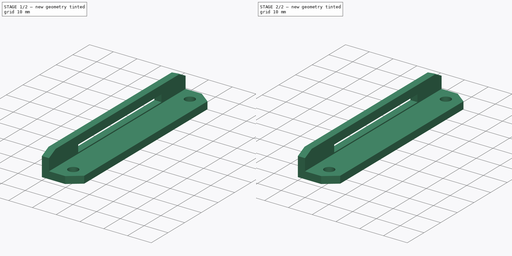
[diagram: build sequence overview — one tinted view per stage of 2, left to right]
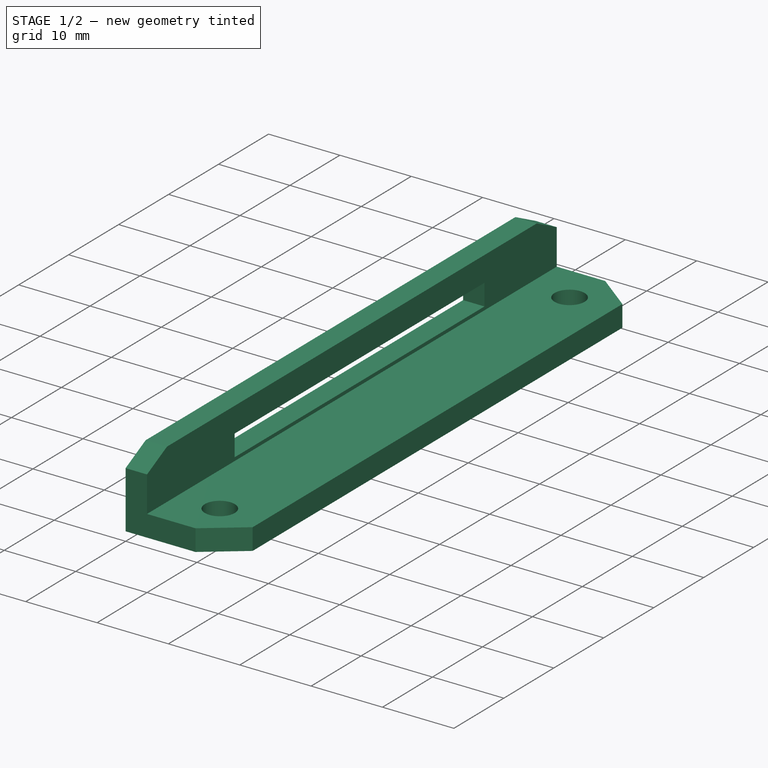
[diagram: stage 1 of 2 — iso view after this stage's code; geometry added in this stage tinted green]
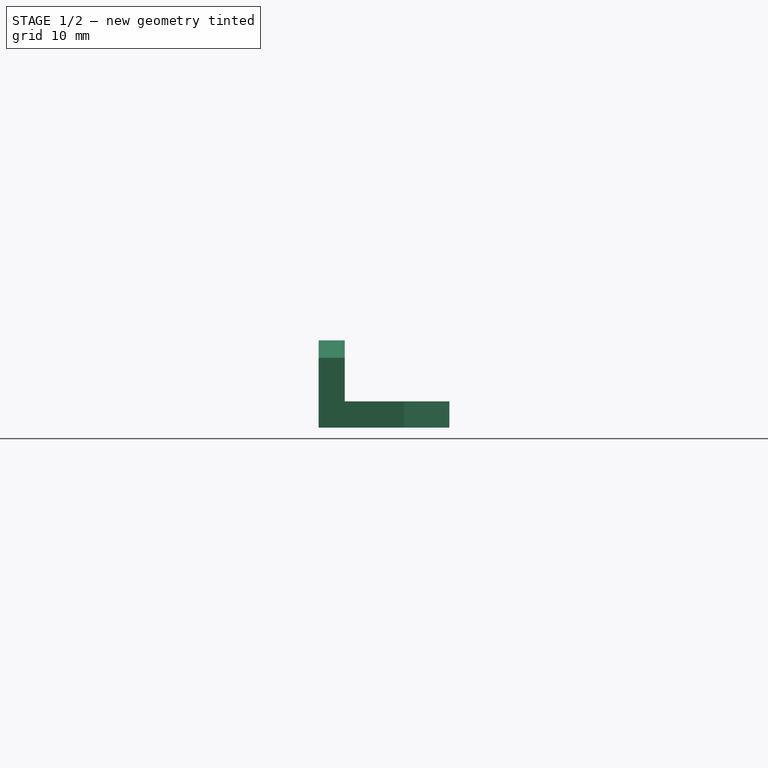
[diagram: stage 1 of 2 — front view after this stage's code; geometry added in this stage tinted green]
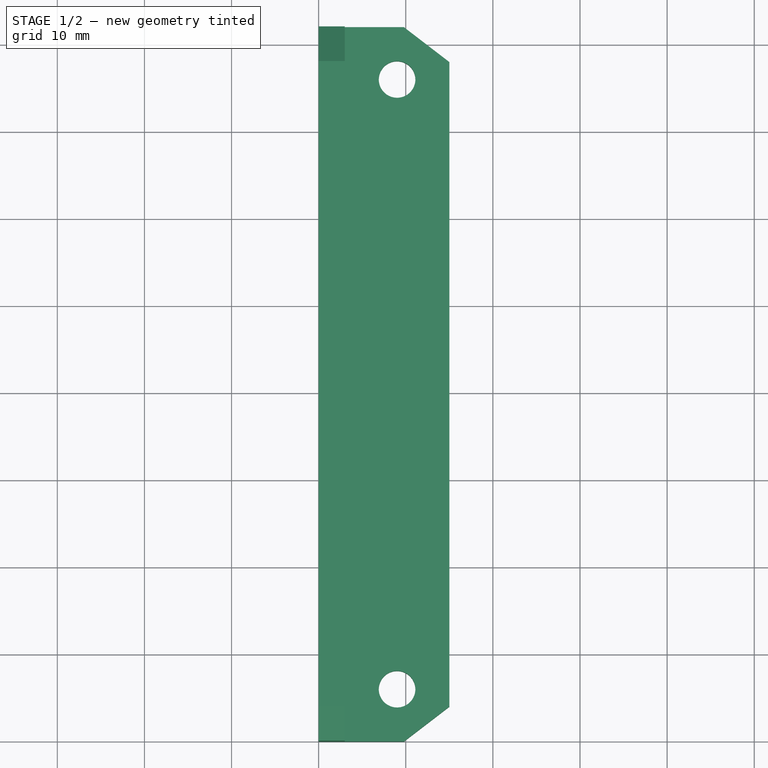
[diagram: stage 1 of 2 — top view after this stage's code; geometry added in this stage tinted green]
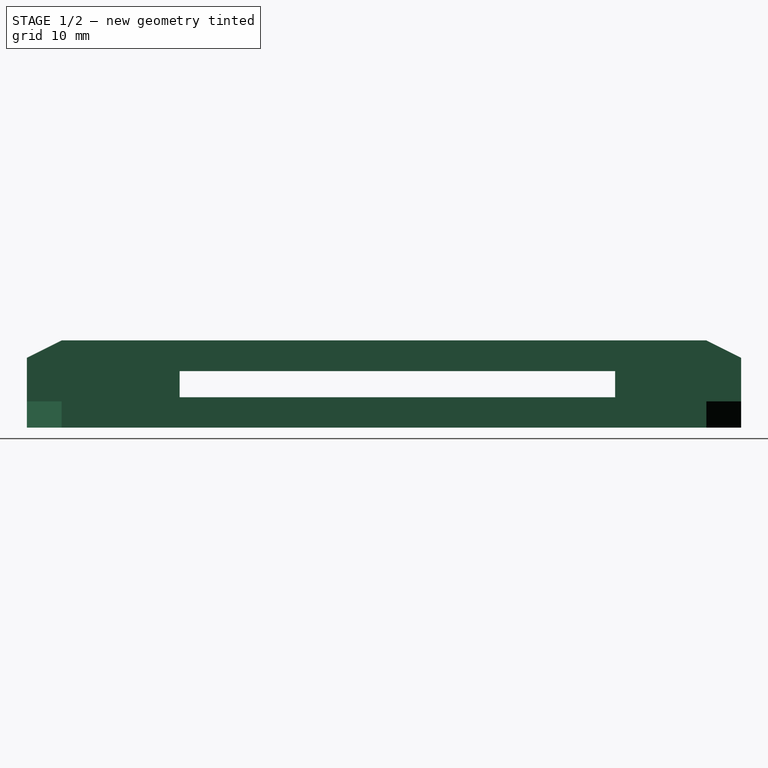
[diagram: stage 1 of 2 — right view after this stage's code; geometry added in this stage tinted green]
FCSTD DOCUMENT  (FreeCAD 0.16R6712 (Git))
Label: Enclosure_supports
License: All rights reserved
LicenseURL: http://en.wikipedia.org/wiki/All_rights_reserved
objects: Sketcher::SketchObject×2, PartDesign::Pad×2, Part::MultiFuse×1
note: 7 computed .brp shape members not serialized (recipe doc carries the construction recipe); baked Part::Feature solids carry a one-line shape summary decoded from their .brp

FEATURE [Sketcher::SketchObject] Sketch
  sketch-geometry (8):
    g0: LineSegment StartX=0 StartY=82 StartZ=0 EndX=0 EndY=0 EndZ=0
    g1: LineSegment StartX=14.9996 StartY=4 StartZ=0 EndX=14.9996 EndY=78 EndZ=0
    g2: Circle CenterX=9 CenterY=6 CenterZ=0 NormalX=0 NormalY=0 NormalZ=1 Radius=2.1
    g3: Circle CenterX=9 CenterY=76 CenterZ=0 NormalX=0 NormalY=0 NormalZ=1 Radius=2.1
    g4: LineSegment StartX=0 StartY=0 StartZ=0 EndX=9.78741 EndY=0 EndZ=0
    g5: LineSegment StartX=9.78741 StartY=0 StartZ=0 EndX=14.9996 EndY=4 EndZ=0
    g6: LineSegment StartX=0 StartY=82 StartZ=0 EndX=9.78741 EndY=82 EndZ=0
    g7: LineSegment StartX=9.78741 StartY=82 StartZ=0 EndX=14.9996 EndY=78 EndZ=0
  constraints (22):
    c: PointOnObject(g0,g-2)
    c: Vertical(g0)
    c: Vertical(g1)
    c: Radius(g2) = 2.1
    c: Equal(g2,g3)
    c: Distance(g1) = 74
    c: Distance(g0) = 82
    c: Coincident(g-1,g0)
    c: Distance(g3,g2) = 70
    c: Horizontal(g4)
    c: Coincident(g4,g5)
    c: Coincident(g5,g1)
    c: Coincident(g4,g-1)
    c: Coincident(g0,g6)
    c: Horizontal(g6)
    c: Coincident(g6,g7)
    c: Coincident(g7,g1)
    c: Equal(g6,g4)
    c: Equal(g7,g5)
    c: Distance(g3,g0) = 9
    c: Distance(g2,g0) = 9
    c: Distance(g3,g6) = 6
FEATURE [PartDesign::Pad] Pad
  Length = 3
  Length2 = 100
  Sketch = -> Sketch
  Type = 0
FEATURE [Sketcher::SketchObject] Sketch001
  Placement = pos=(0,0,0) rot=(0.57735,0.57735,0.57735;2.0944rad)
  sketch-geometry (10):
    g0: LineSegment StartX=0 StartY=0 StartZ=0 EndX=82 EndY=0 EndZ=0
    g1: LineSegment StartX=82 StartY=0 StartZ=0 EndX=82 EndY=8 EndZ=0
    g2: LineSegment StartX=82 StartY=8 StartZ=0 EndX=78 EndY=10.0012 EndZ=0
    g3: LineSegment StartX=78 StartY=10.0012 StartZ=0 EndX=4 EndY=10.0012 EndZ=0
    g4: LineSegment StartX=4 StartY=10.0012 StartZ=0 EndX=0 EndY=8 EndZ=0
    g5: LineSegment StartX=0 StartY=8 StartZ=0 EndX=0 EndY=0 EndZ=0
    g6: LineSegment StartX=17.5338 StartY=3.48334 StartZ=0 EndX=67.5338 EndY=3.48334 EndZ=0
    g7: LineSegment StartX=67.5338 StartY=3.48334 StartZ=0 EndX=67.5338 EndY=6.48334 EndZ=0
    g8: LineSegment StartX=67.5338 StartY=6.48334 StartZ=0 EndX=17.5338 EndY=6.48334 EndZ=0
    g9: LineSegment StartX=17.5338 StartY=6.48334 StartZ=0 EndX=17.5338 EndY=3.48334 EndZ=0
  constraints (26):
    c: Coincident(g0,g1)
    c: Vertical(g1)
    c: Coincident(g1,g2)
    c: Coincident(g2,g3)
    c: Horizontal(g3)
    c: Coincident(g3,g4)
    c: Coincident(g4,g5)
    c: Coincident(g5,g0)
    c: Parallel(g5,g1)
    c: Equal(g5,g1)
    c: Equal(g4,g2)
    c: Coincident(g6,g7)
    c: Coincident(g7,g8)
    c: Coincident(g8,g9)
    c: Coincident(g9,g6)
    c: Horizontal(g8)
    c: Vertical(g7)
    c: Vertical(g9)
    c: Parallel(g8,g0)
    c: Parallel(g0,g6)
    c: Coincident(g-1,g0)
    c: Distance(g0) = 82
    c: Distance(g3) = 74
    c: Distance(g1) = 8
    c: DistanceX(g8,g8) = 50
    c: DistanceY(g9,g9) = 3
FEATURE [PartDesign::Pad] Pad001
  Length = 3
  Length2 = 100
  Placement = pos=(0,0,0) rot=(0.57735,0.57735,0.57735;2.0944rad)
  Sketch = -> Sketch001
  Type = 0
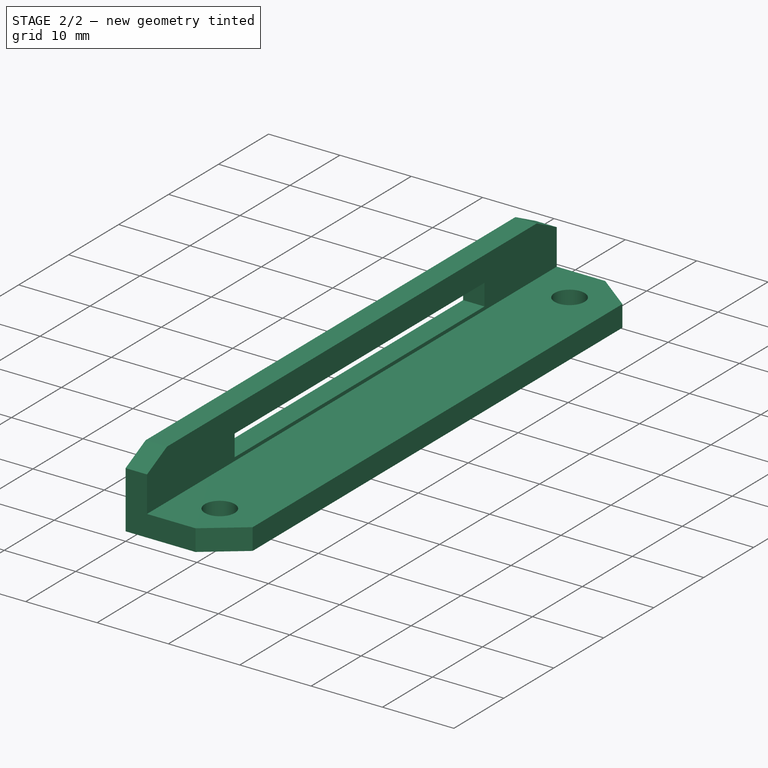
[diagram: stage 2 of 2 — iso view after this stage's code; geometry added in this stage tinted green]
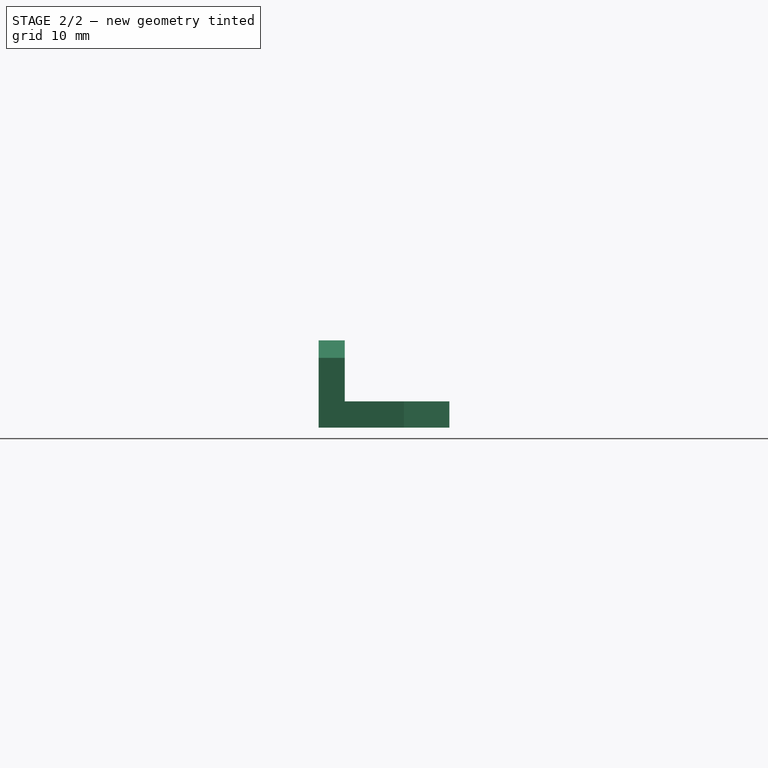
[diagram: stage 2 of 2 — front view after this stage's code; geometry added in this stage tinted green]
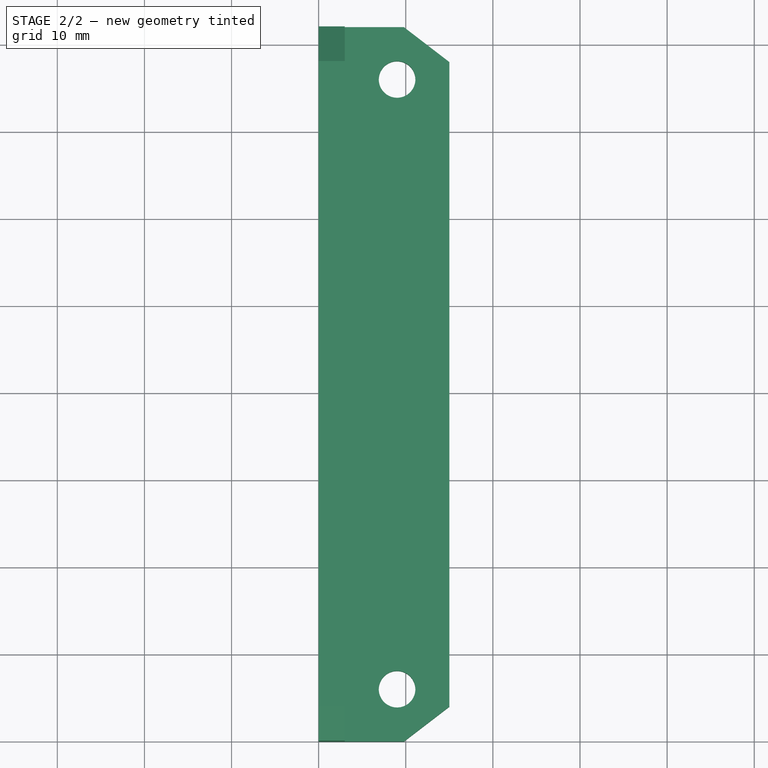
[diagram: stage 2 of 2 — top view after this stage's code; geometry added in this stage tinted green]
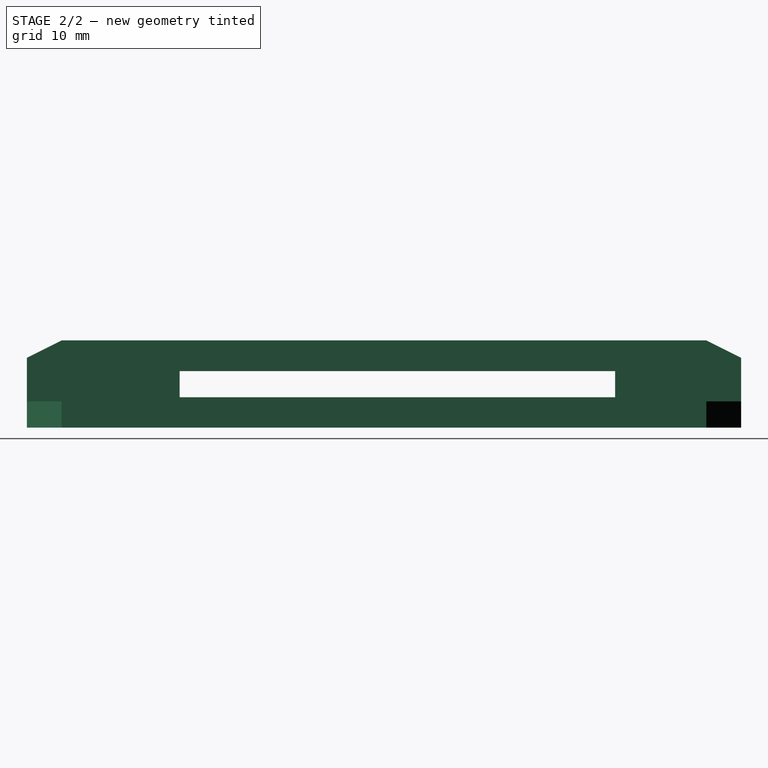
[diagram: stage 2 of 2 — right view after this stage's code; geometry added in this stage tinted green]
FEATURE [Part::MultiFuse] Fusion
  Shapes = -> [Pad,Pad001]
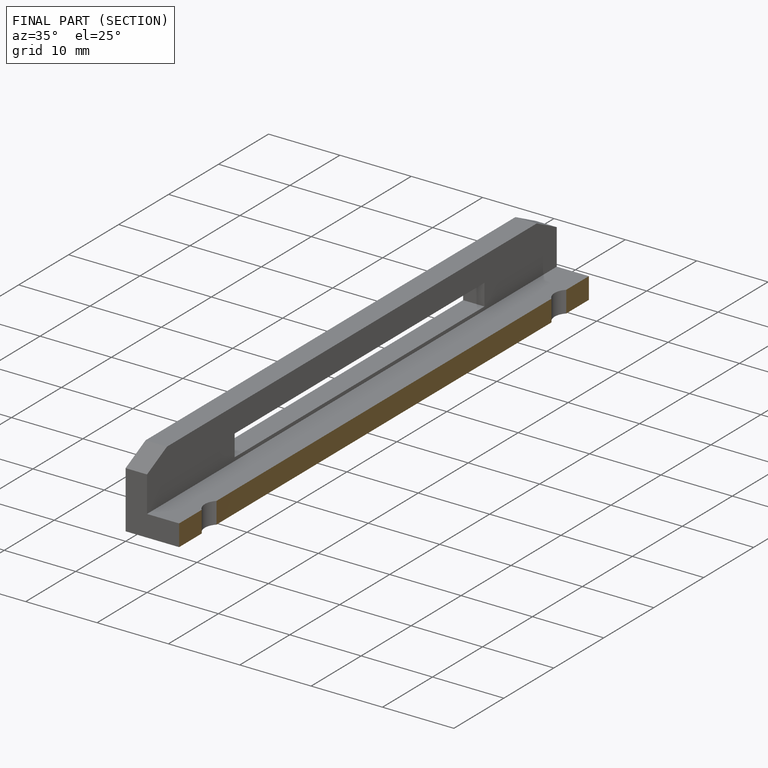
[diagram: finished part — half-section view (interior)]
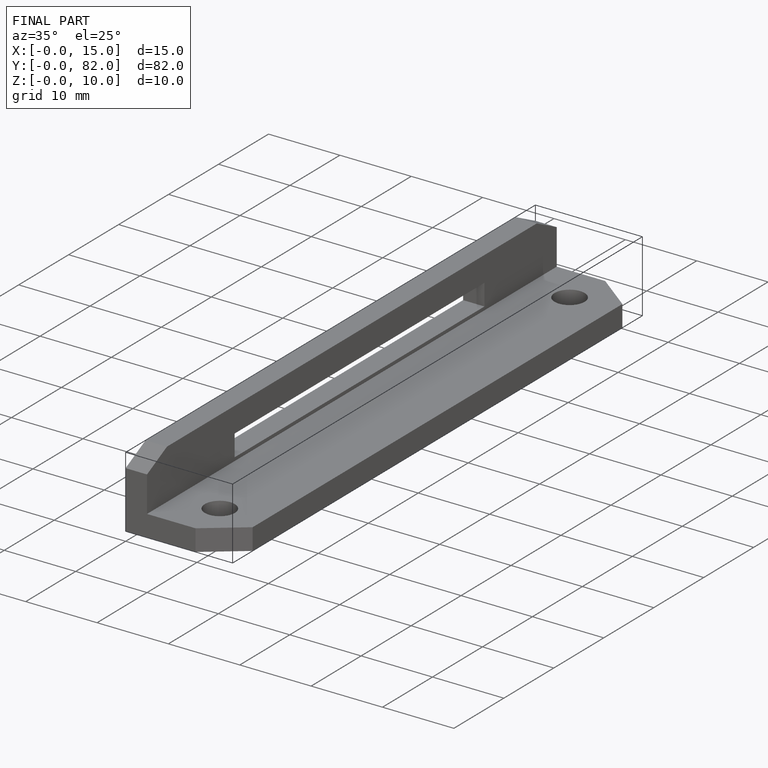
[diagram: finished part — iso view with bounding-box wireframe]
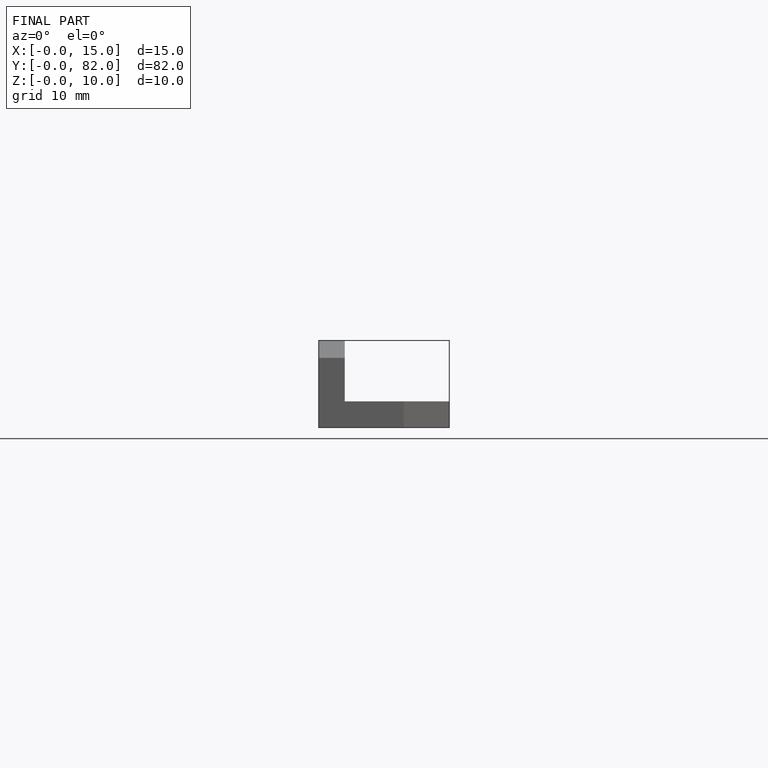
[diagram: finished part — front view with bounding-box wireframe]
